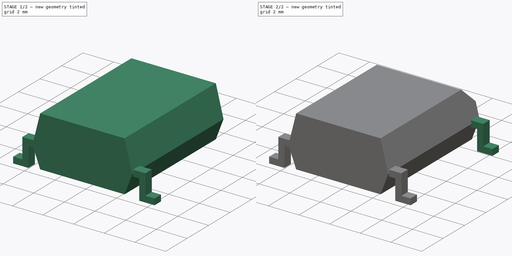
[diagram: build sequence overview — one tinted view per stage of 2, left to right]
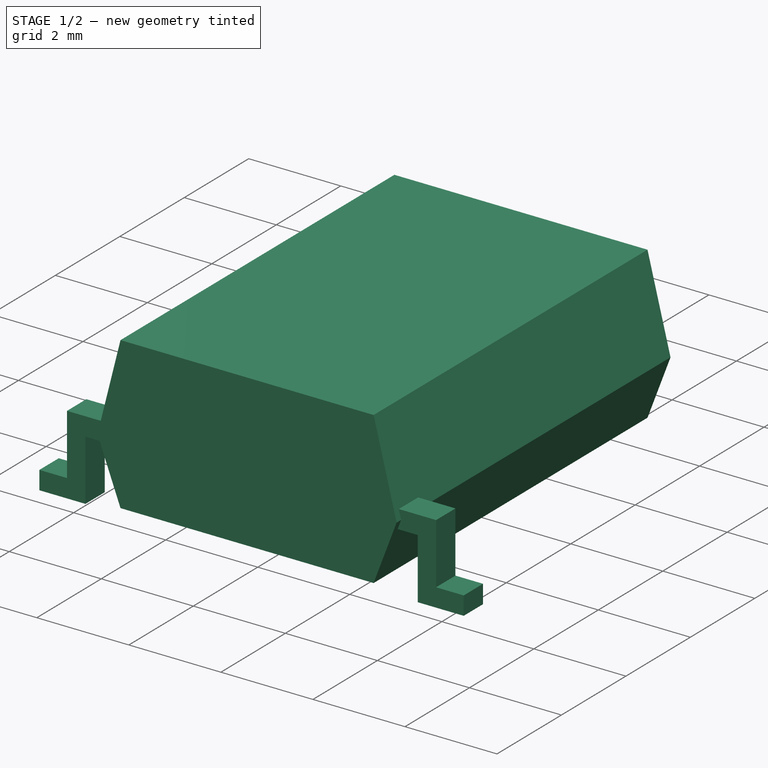
[diagram: stage 1 of 2 — iso view after this stage's code; geometry added in this stage tinted green]
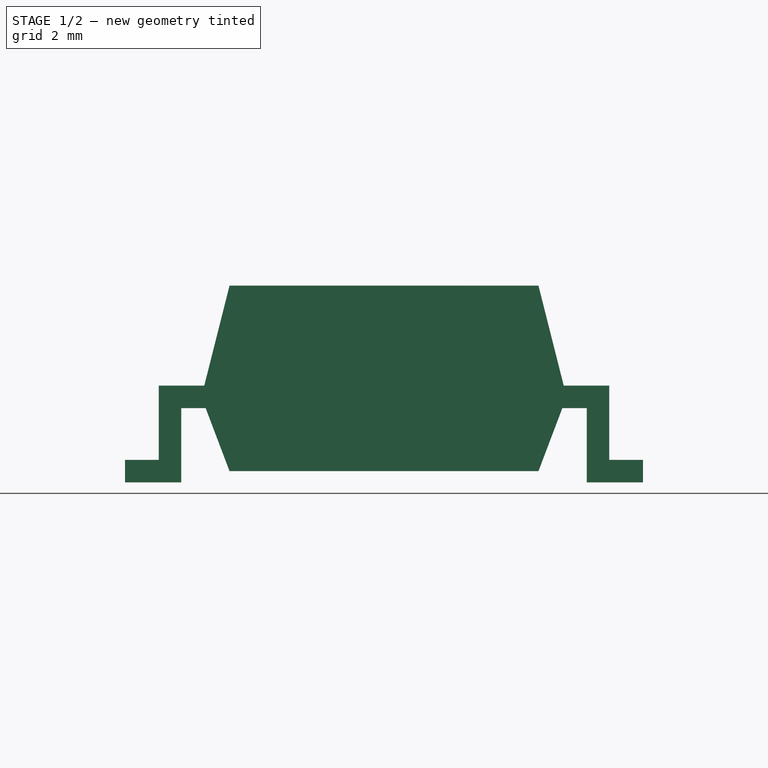
[diagram: stage 1 of 2 — front view after this stage's code; geometry added in this stage tinted green]
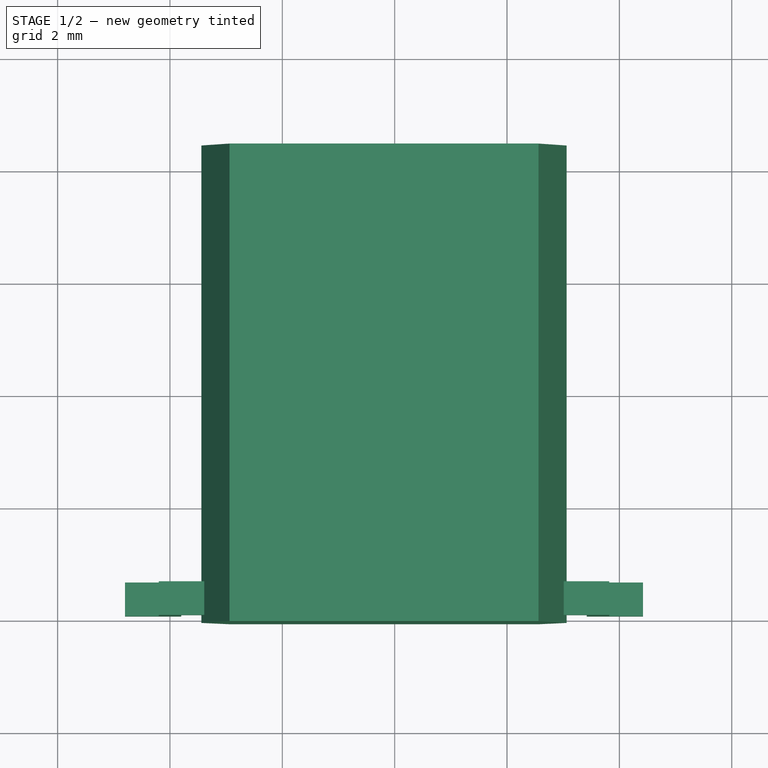
[diagram: stage 1 of 2 — top view after this stage's code; geometry added in this stage tinted green]
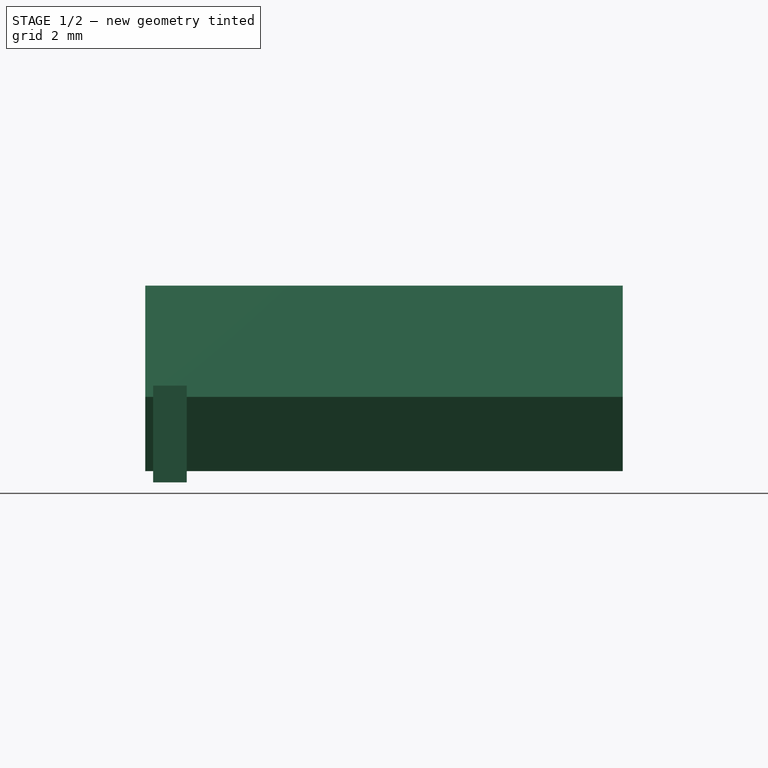
[diagram: stage 1 of 2 — right view after this stage's code; geometry added in this stage tinted green]
FCSTD DOCUMENT  (FreeCAD 0.16R6703 (Git))
Label: D_Bridge_DIP8_SMD
License: All rights reserved
LicenseURL: http://en.wikipedia.org/wiki/All_rights_reserved
objects: Sketcher::SketchObject×3, PartDesign::Pad×3, Spreadsheet::Sheet×1, PartDesign::Chamfer×1
note: 10 computed .brp shape members not serialized (recipe doc carries the construction recipe); baked Part::Feature solids carry a one-line shape summary decoded from their .brp

FEATURE [Spreadsheet::Sheet] Spreadsheet
  cells = A1=px; B1(px)=7.62; A2=py; B2(py)=7.62; A3=wx; B3(wx)=8.5; A4=wy; B4(wy)=6.5; A5=wz; B5(wz)=3.3
FEATURE [Sketcher::SketchObject] Sketch
  Placement = pos=(0,-3.81,0) rot=(1,0,0;1.5708rad)
  expr: Placement.Base.y = -Spreadsheet.px / 2
  expr: Constraints[17] = Spreadsheet.wz * 0.6
  expr: Constraints[15] = (Spreadsheet.py - Spreadsheet.wy) / 2
  expr: Constraints[14] = Spreadsheet.wy - 1
  expr: Constraints[13] = 0.5
  expr: Constraints[10] = Spreadsheet.wy
  expr: Constraints[8] = Spreadsheet.wz
  sketch-geometry (6):
    g0: LineSegment StartX=1.06 StartY=0.2 StartZ=0 EndX=6.56 EndY=0.2 EndZ=0
    g1: LineSegment StartX=1.06 StartY=0.2 StartZ=0 EndX=0.56 EndY=1.52 EndZ=0
    g2: LineSegment StartX=0.56 StartY=1.52 StartZ=0 EndX=1.06 EndY=3.5 EndZ=0
    g3: LineSegment StartX=1.06 StartY=3.5 StartZ=0 EndX=6.56 EndY=3.5 EndZ=0
    g4: LineSegment StartX=6.56 StartY=3.5 StartZ=0 EndX=7.06 EndY=1.52 EndZ=0
    g5: LineSegment StartX=7.06 StartY=1.52 StartZ=0 EndX=6.56 EndY=0.2 EndZ=0
  constraints (18):
    c: Horizontal(g0)
    c: Coincident(g1,g0)
    c: Coincident(g2,g1)
    c: Coincident(g3,g2)
    c: Horizontal(g3)
    c: Coincident(g5,g4)
    c: Coincident(g5,g0)
    c: DistanceY(g1,g4) = 0
    c: DistanceY(g0,g4) = 3.3
    c: Coincident(g4,g3)
    c: DistanceX(g1,g4) = 6.5
    c: DistanceX(g3,g0) = 0
    c: DistanceX(g0,g2) = 0
    c: DistanceX(g1,g0) = 0.5
    c: DistanceX(g0,g0) = 5.5
    c: DistanceX(g-1,g1) = 0.56
    c: DistanceY(g-1,g0) = 0.2
    c: DistanceY(g4,g3) = 1.98
FEATURE [PartDesign::Pad] Pad
  Length = 8.5
  Length2 = 100
  Midplane = true
  Placement = pos=(0,-3.81,0) rot=(1,0,0;1.5708rad)
  Sketch = -> Sketch
  Type = 0
  expr: Length = Spreadsheet.wx
FEATURE [Sketcher::SketchObject] Sketch002
  Placement = pos=(0,-7.62,0) rot=(1,0,0;1.5708rad)
  expr: Placement.Base.y = -Spreadsheet.px
  expr: Constraints[16] = Spreadsheet.py + 0.4
  expr: Constraints[5] = Spreadsheet.wz * 0.4 + 0.2 + 0.2
  sketch-geometry (14):
    g0: LineSegment StartX=-0.2 StartY=0 StartZ=0 EndX=0.2 EndY=0 EndZ=0
    g1: LineSegment StartX=7.82 StartY=1.72 StartZ=0 EndX=-0.2 EndY=1.72 EndZ=0
    g2: LineSegment StartX=7.82 StartY=0 StartZ=0 EndX=7.42 EndY=0 EndZ=0
    g3: LineSegment StartX=7.42 StartY=0 StartZ=0 EndX=7.42 EndY=1.32 EndZ=0
    g4: LineSegment StartX=7.42 StartY=1.32 StartZ=0 EndX=0.2 EndY=1.32 EndZ=0
    g5: LineSegment StartX=0.2 StartY=1.32 StartZ=0 EndX=0.2 EndY=0 EndZ=0
    g6: LineSegment StartX=-0.2 StartY=0 StartZ=0 EndX=-0.8 EndY=0 EndZ=0
    g7: LineSegment StartX=-0.8 StartY=0 StartZ=0 EndX=-0.8 EndY=0.4 EndZ=0
    g8: LineSegment StartX=-0.8 StartY=0.4 StartZ=0 EndX=-0.2 EndY=0.4 EndZ=0
    g9: LineSegment StartX=-0.2 StartY=0.4 StartZ=0 EndX=-0.2 EndY=1.72 EndZ=0
    g10: LineSegment StartX=7.82 StartY=0 StartZ=0 EndX=8.42 EndY=0 EndZ=0
    g11: LineSegment StartX=8.42 StartY=0 StartZ=0 EndX=8.42 EndY=0.4 EndZ=0
    g12: LineSegment StartX=8.42 StartY=0.4 StartZ=0 EndX=7.82 EndY=0.4 EndZ=0
    g13: LineSegment StartX=7.82 StartY=0.4 StartZ=0 EndX=7.82 EndY=1.72 EndZ=0
  constraints (42):
    c: Horizontal(g0)
    c: Horizontal(g1)
    c: DistanceX(g0,g-1) = 0.2
    c: DistanceX(g0,g0) = 0.4
    c: DistanceY(g0,g-1) = 0
    c: DistanceY(g-1,g1) = 1.72
    c: Horizontal(g2)
    c: Coincident(g3,g2)
    c: Vertical(g3)
    c: Coincident(g4,g3)
    c: Horizontal(g4)
    c: Coincident(g5,g4)
    c: Coincident(g5,g0)
    c: Vertical(g5)
    c: DistanceX(g2,g2) = 0.4
    c: DistanceY(g3,g1) = 0.4
    c: DistanceX(g1,g1) = 8.02
    c: DistanceY(g2,g0) = 0
    c: Coincident(g6,g0)
    c: Horizontal(g6)
    c: Coincident(g7,g6)
    c: Horizontal(g8)
    c: Coincident(g9,g8)
    c: Coincident(g9,g1)
    c: Vertical(g9)
    c: Coincident(g7,g8)
    c: DistanceY(g6,g7) = 0.4
    c: DistanceX(g0,g8) = 0
    c: DistanceX(g6,g0) = 1
    c: Vertical(g7)
    c: Coincident(g10,g2)
    c: Horizontal(g10)
    c: Coincident(g11,g10)
    c: Vertical(g11)
    c: Coincident(g12,g11)
    c: Horizontal(g12)
    c: Coincident(g13,g12)
    c: Coincident(g13,g1)
    c: Vertical(g13)
    c: DistanceY(g7,g11) = 0
    c: DistanceX(g2,g12) = 0
    c: DistanceX(g2,g10) = 1
FEATURE [PartDesign::Pad] Pad002
  Length = 0.6
  Length2 = 100
  Midplane = true
  Placement = pos=(0,-7.62,0) rot=(1,0,0;1.5708rad)
  Sketch = -> Sketch002
  Type = 0
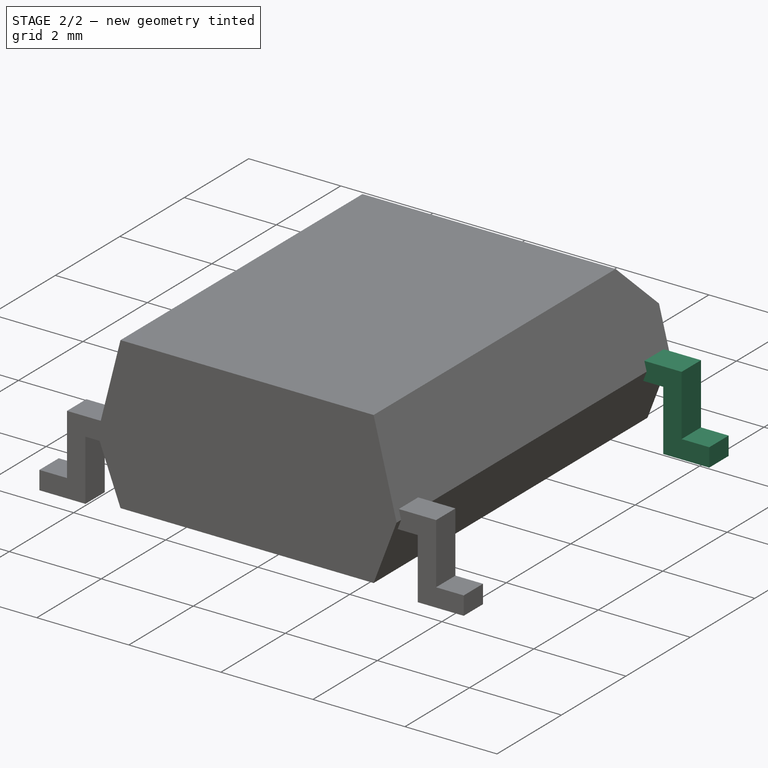
[diagram: stage 2 of 2 — iso view after this stage's code; geometry added in this stage tinted green]
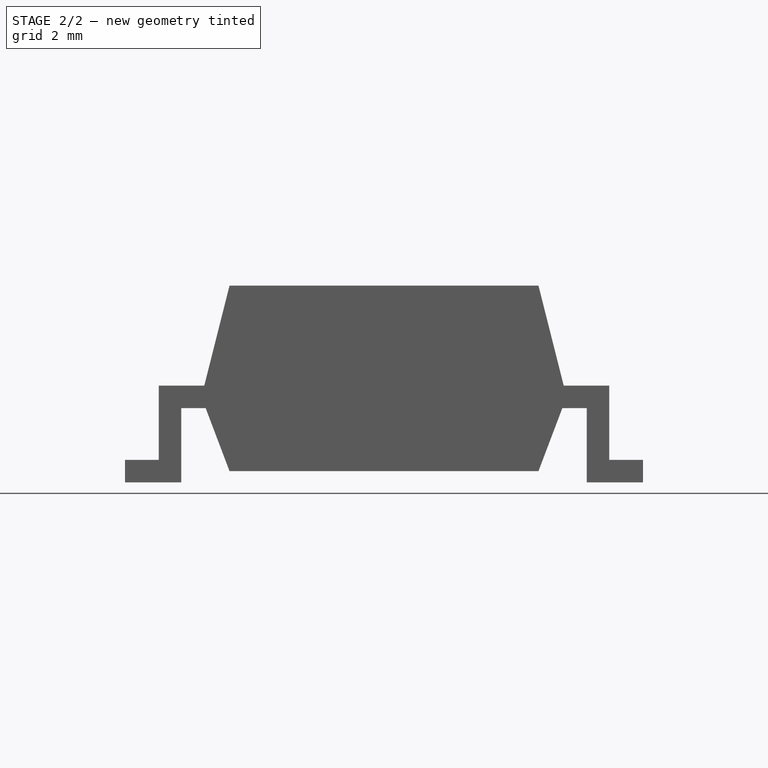
[diagram: stage 2 of 2 — front view after this stage's code; geometry added in this stage tinted green]
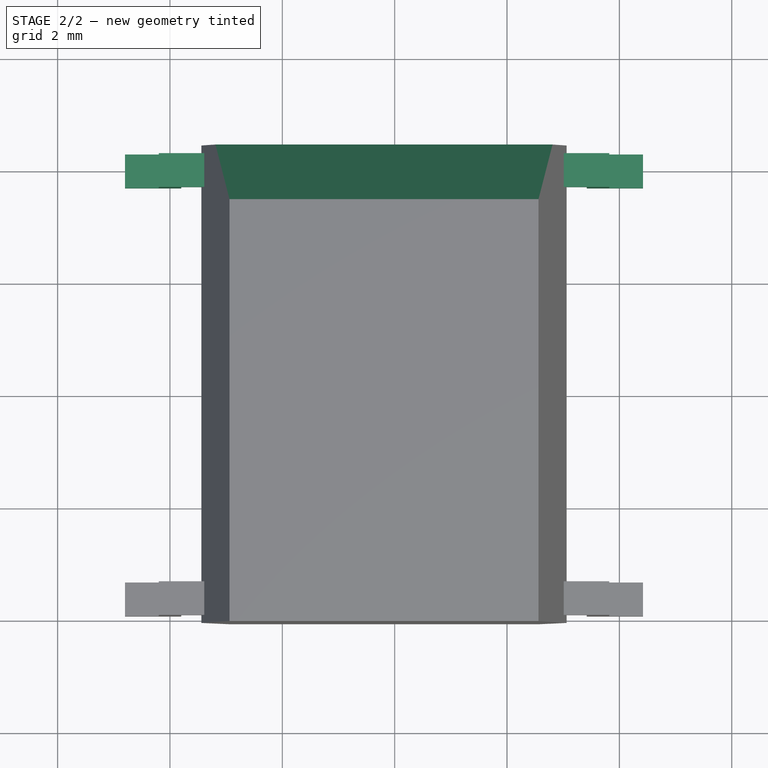
[diagram: stage 2 of 2 — top view after this stage's code; geometry added in this stage tinted green]
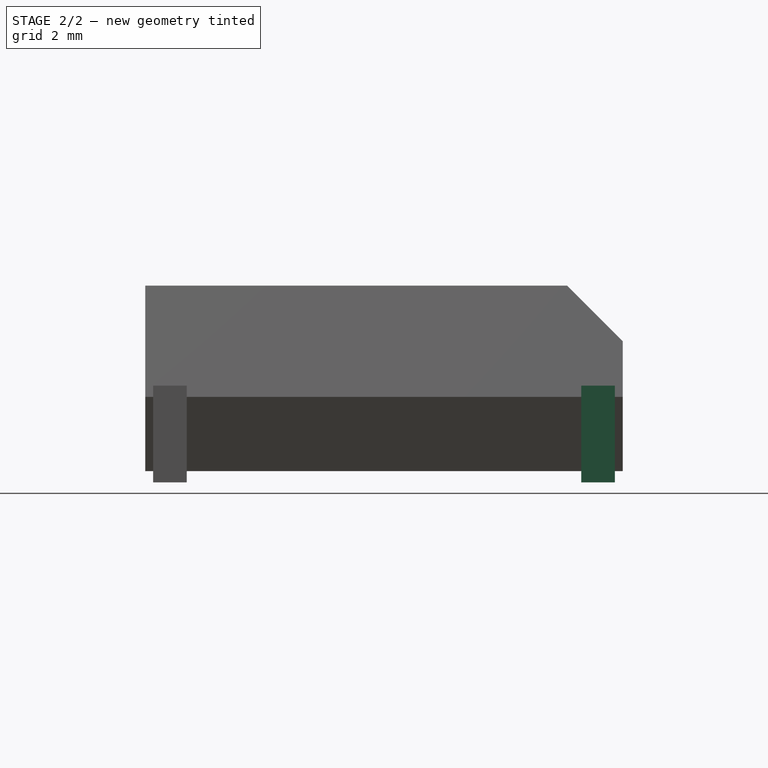
[diagram: stage 2 of 2 — right view after this stage's code; geometry added in this stage tinted green]
FEATURE [Sketcher::SketchObject] Sketch001
  Placement = pos=(0,0,0) rot=(1,0,0;1.5708rad)
  expr: Constraints[16] = Spreadsheet.py + 0.4
  expr: Constraints[5] = Spreadsheet.wz * 0.4 + 0.2 + 0.2
  sketch-geometry (14):
    g0: LineSegment StartX=-0.2 StartY=0 StartZ=0 EndX=0.2 EndY=0 EndZ=0
    g1: LineSegment StartX=7.82 StartY=1.72 StartZ=0 EndX=-0.2 EndY=1.72 EndZ=0
    g2: LineSegment StartX=7.82 StartY=0 StartZ=0 EndX=7.42 EndY=0 EndZ=0
    g3: LineSegment StartX=7.42 StartY=0 StartZ=0 EndX=7.42 EndY=1.32 EndZ=0
    g4: LineSegment StartX=7.42 StartY=1.32 StartZ=0 EndX=0.2 EndY=1.32 EndZ=0
    g5: LineSegment StartX=0.2 StartY=1.32 StartZ=0 EndX=0.2 EndY=0 EndZ=0
    g6: LineSegment StartX=-0.2 StartY=0 StartZ=0 EndX=-0.8 EndY=0 EndZ=0
    g7: LineSegment StartX=-0.8 StartY=0 StartZ=0 EndX=-0.8 EndY=0.4 EndZ=0
    g8: LineSegment StartX=-0.8 StartY=0.4 StartZ=0 EndX=-0.2 EndY=0.4 EndZ=0
    g9: LineSegment StartX=-0.2 StartY=0.4 StartZ=0 EndX=-0.2 EndY=1.72 EndZ=0
    g10: LineSegment StartX=7.82 StartY=0 StartZ=0 EndX=8.42 EndY=0 EndZ=0
    g11: LineSegment StartX=8.42 StartY=0 StartZ=0 EndX=8.42 EndY=0.4 EndZ=0
    g12: LineSegment StartX=8.42 StartY=0.4 StartZ=0 EndX=7.82 EndY=0.4 EndZ=0
    g13: LineSegment StartX=7.82 StartY=0.4 StartZ=0 EndX=7.82 EndY=1.72 EndZ=0
  constraints (42):
    c: Horizontal(g0)
    c: Horizontal(g1)
    c: DistanceX(g0,g-1) = 0.2
    c: DistanceX(g0,g0) = 0.4
    c: DistanceY(g0,g-1) = 0
    c: DistanceY(g-1,g1) = 1.72
    c: Horizontal(g2)
    c: Coincident(g3,g2)
    c: Vertical(g3)
    c: Coincident(g4,g3)
    c: Horizontal(g4)
    c: Coincident(g5,g4)
    c: Coincident(g5,g0)
    c: Vertical(g5)
    c: DistanceX(g2,g2) = 0.4
    c: DistanceY(g3,g1) = 0.4
    c: DistanceX(g1,g1) = 8.02
    c: DistanceY(g2,g0) = 0
    c: Coincident(g6,g0)
    c: Horizontal(g6)
    c: Coincident(g7,g6)
    c: Horizontal(g8)
    c: Coincident(g9,g8)
    c: Coincident(g9,g1)
    c: Vertical(g9)
    c: Coincident(g7,g8)
    c: DistanceY(g6,g7) = 0.4
    c: DistanceX(g0,g8) = 0
    c: DistanceX(g6,g0) = 1
    c: Vertical(g7)
    c: Coincident(g10,g2)
    c: Horizontal(g10)
    c: Coincident(g11,g10)
    c: Vertical(g11)
    c: Coincident(g12,g11)
    c: Horizontal(g12)
    c: Coincident(g13,g12)
    c: Coincident(g13,g1)
    c: Vertical(g13)
    c: DistanceY(g7,g11) = 0
    c: DistanceX(g2,g12) = 0
    c: DistanceX(g2,g10) = 1
FEATURE [PartDesign::Pad] Pad001
  Length = 0.6
  Length2 = 100
  Midplane = true
  Placement = pos=(0,0,0) rot=(1,0,0;1.5708rad)
  Sketch = -> Sketch001
  Type = 0
FEATURE [PartDesign::Chamfer] Chamfer
  Base = -> Pad [Edge12]
  Placement = pos=(0,-3.81,0) rot=(1,0,0;1.5708rad)
  Size = 0.99
  expr: Size = Spreadsheet.wz * 0.3
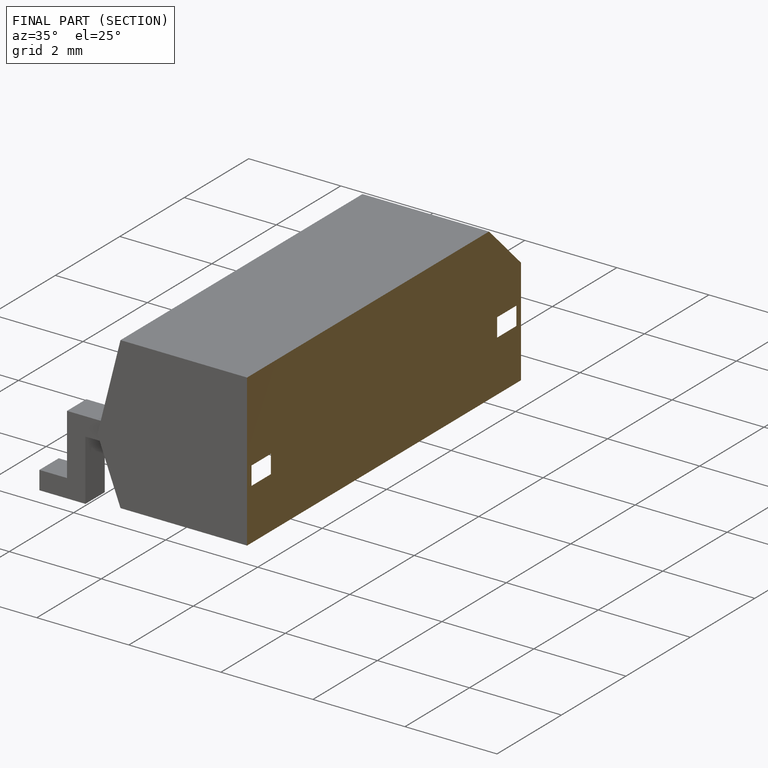
[diagram: finished part — half-section view (interior)]
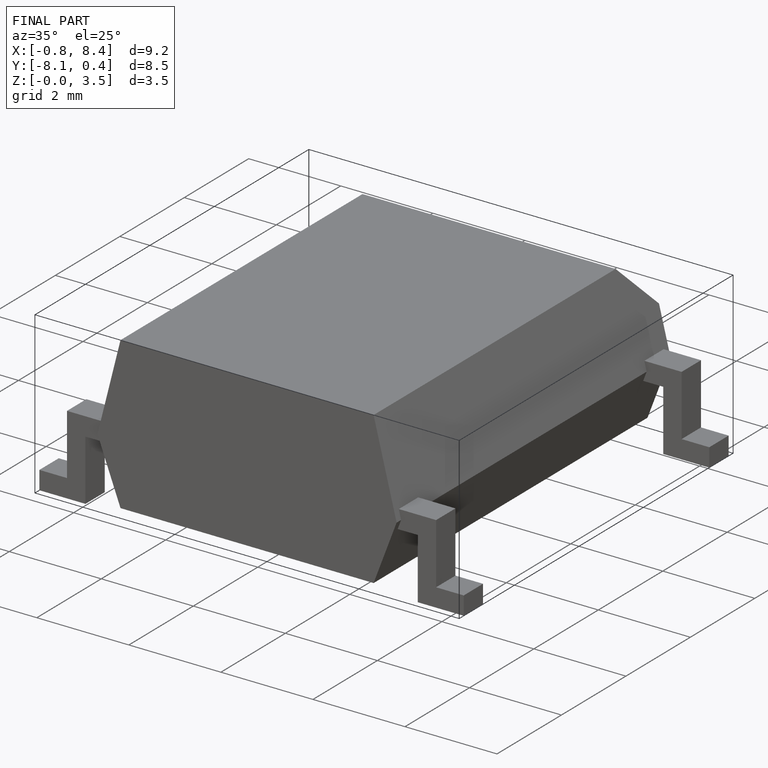
[diagram: finished part — iso view with bounding-box wireframe]
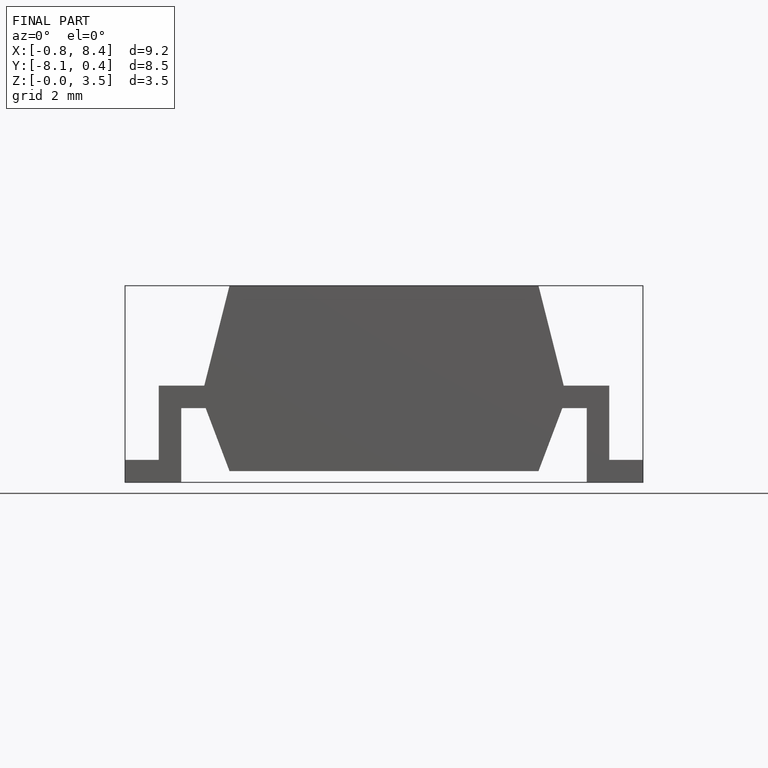
[diagram: finished part — front view with bounding-box wireframe]
